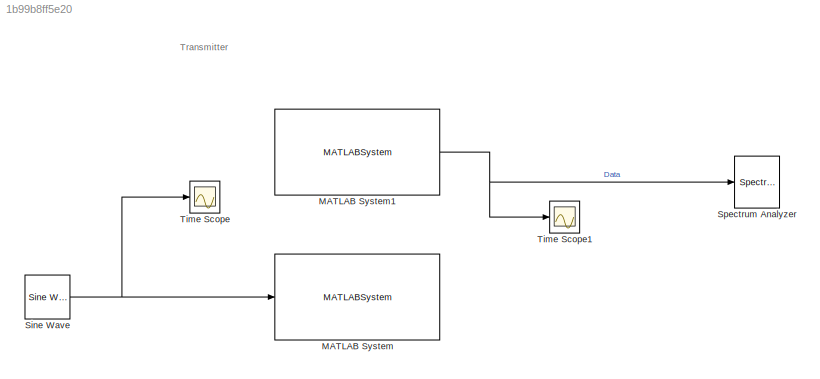
MODEL slx_1b99b8ff5e20
KIND model
CONFIG AbsTol = auto
CONFIG EnableMultiTasking = off
CONFIG FixedStep = auto
CONFIG MaxStep = auto
CONFIG MinStep = auto
CONFIG RelTol = 1e-3
CONFIG SampleTimeConstraint = Unconstrained
CONFIG SolverName = FixedStepDiscrete
CONFIG StartTime = 0.0
CONFIG StopTime = inf
BLOCK [MATLABSystem] MATLAB System
  MaskDisplay = disp(['Nuand' char(10) 'bladeRF']);\nport_label('input',1,'TX Samples');
  MaskType = bladeRF_Simulink
  SimulateUsing = Interpreted execution
  System = bladeRF_Simulink
  device_string = *:instance=1
  enable_overrun = off
  enable_rx = off
  enable_rx_biastee = off
  enable_tx = on
  enable_tx_biastee = off
  enable_underrun = off
  loopback_mode = None
  rx_agc = AUTO
  rx_bandwidth = 1.5
  rx_buf_size = sdrqpsktx.BladeRF.stream.buffer_size
  rx_frequency = sdrqpsktx.BladeRF_Frequency
  rx_gain = sdrqpsktx.BladeRF_Gain_Rx
  rx_num_buffers = sdrqpsktx.BladeRF.stream.n_buffers
  rx_num_transfers = sdrqpsktx.BladeRF.stream.n_transfers
  rx_samplerate = sdrqpsktx.BladeRF_SampleRate
  rx_step_size = 10000
  rx_timeout_ms = sdrqpsktx.BladeRF.stream.timeout
  tx_bandwidth = 1.5
  tx_buf_size = sdrqpsktx.BladeRF.stream.buffer_size
  tx_frequency = 150e6
  tx_gain = sdrqpsktx.BladeRF_Gain_Tx
  tx_num_buffers = sdrqpsktx.BladeRF.stream.n_buffers
  tx_num_transfers = sdrqpsktx.BladeRF.stream.n_transfers
  tx_samplerate = 2.084e6
  tx_step_size = 32768
  tx_timeout_ms = sdrqpsktx.BladeRF.stream.timeout
  verbosity = Info
  xb200 = off
BLOCK [MATLABSystem] MATLAB System1
  MaskDisplay = disp(['Nuand' char(10) 'bladeRF']);\nport_label('output',1,'RX Samples');
  MaskType = bladeRF_Simulink
  SimulateUsing = Interpreted execution
  System = bladeRF_Simulink
  device_string = *:instance=0
  enable_overrun = off
  enable_rx = on
  enable_rx_biastee = off
  enable_tx = off
  enable_tx_biastee = off
  enable_underrun = off
  loopback_mode = None
  rx_agc = SLOW
  rx_bandwidth = 1.5
  rx_buf_size = sdrqpsktx.BladeRF.stream.buffer_size
  rx_frequency = 150e6
  rx_gain = 30
  rx_num_buffers = sdrqpsktx.BladeRF.stream.n_buffers
  rx_num_transfers = sdrqpsktx.BladeRF.stream.n_transfers
  rx_samplerate = 2.084e6
  rx_step_size = 32768
  rx_timeout_ms = sdrqpsktx.BladeRF.stream.timeout
  tx_bandwidth = 1.5
  tx_buf_size = sdrqpsktx.BladeRF.stream.buffer_size
  tx_frequency = sdrqpsktx.BladeRF_Frequency
  tx_gain = sdrqpsktx.BladeRF_Gain_Tx
  tx_num_buffers = sdrqpsktx.BladeRF.stream.n_buffers
  tx_num_transfers = sdrqpsktx.BladeRF.stream.n_transfers
  tx_samplerate = sdrqpsktx.BladeRF_SampleRate
  tx_step_size = 10000
  tx_timeout_ms = sdrqpsktx.BladeRF.stream.timeout
  verbosity = Info
  xb200 = off
BLOCK [Reference] Sine Wave  REF=dspsrcs4/Sine Wave
  SourceBlock = dspsrcs4/Sine Wave
  SourceType = Sine Wave
BLOCK [SpectrumAnalyzer] Spectrum Analyzer
  GraphicalSettings = {"GraphicalSettings":{"Style":{"BackgroundColor":[0.1568627450980392,0.1568627450980392,0.1568627450980392],"AxesColor":[0,0,0],"LabelsColor":[0.6862745098039216,0.6862745098039216,0.6862745098039216],"PreserveColors":false,"Visible":[true],"LineStyle":["-"],"LineColor":[[1,1,0.06666666666666667]],"LineWidth":[1.5],"Marker":["none"],"FontSize":"small"},"Cursors":{"Enabled":false,"XLocation":[2,8],...<+831ch>
  Method = Welch
  ScopeFrameLocation = window
  ScopeSpecificationString = spbscopes.SpectrumAnalyzerBlockCfg('CurrentConfiguration', extmgr.ConfigurationSet(extmgr.Configuration('Core','General UI',true),extmgr.Configuration('Core','Source UI',true),extmgr.Configuration('Sources','WiredSimulink',true),extmgr.Configuration('Visuals','Spectrum',true,'AxesProperties',struct('Color',{[0 0 0],[0 0 0]},'XColor',{[0.686274509803922 0.686274509803922 0.686274509803922],[0.68627...<+1359ch>
  Span = 2084000.0000000002
  SpectrumType = Power density
  SpectrumUnits = dBm/Hz
  StartFrequency = -1042000.0000000001
  StopFrequency = 1042000.0000000001
  Visible = on
  WasSavedAsWebScope = on
  WindowPosition = [1136.000000,513.000000,800.000000,500.000000,]
  YLimits = [-101.61744769,-22.67661839]
BLOCK [Scope] Time Scope
  DefaultConfigurationName = spbscopes.TimeScopeBlockCfg
  Floating = off
  NumInputPorts = 1
  ScopeSpecificationString = spbscopes.TimeScopeBlockCfg('CurrentConfiguration', extmgr.ConfigurationSet(extmgr.Configuration('Core','General UI',true),extmgr.Configuration('Core','Source UI',true),extmgr.Configuration('Sources','WiredSimulink',true),extmgr.Configuration('Visuals','Time Domain',true,'DisplayPropertyDefaults',struct('MinYLimReal','-1.25','MaxYLimReal','1.25','YLabelReal','Amplitude','MinYLimMag','0.00000','Max...<+1500ch>
  UserDataPersistent = on
BLOCK [Scope] Time Scope1
  DefaultConfigurationName = spbscopes.TimeScopeBlockCfg
  Floating = off
  NumInputPorts = 1
  ScopeSpecificationString = spbscopes.TimeScopeBlockCfg('CurrentConfiguration', extmgr.ConfigurationSet(extmgr.Configuration('Core','General UI',true),extmgr.Configuration('Core','Source UI',true),extmgr.Configuration('Sources','WiredSimulink',true,'DataLoggingVariableName','ScopeData1'),extmgr.Configuration('Visuals','Time Domain',true,'DisplayPropertyDefaults',struct('MinYLimReal','-1.25','MaxYLimReal','1.25','YLabelReal',...<+1526ch>
  UserDataPersistent = on
ANNOTATION (root): Transmitter
NET MATLAB System1:1 -> Spectrum Analyzer:1, Time Scope1:1
NET Sine Wave:1 -> MATLAB System:1, Time Scope:1
note: NET lines group one-source signal fan-out (src -> all destinations, sorted); 1:1 wires keep LINE
